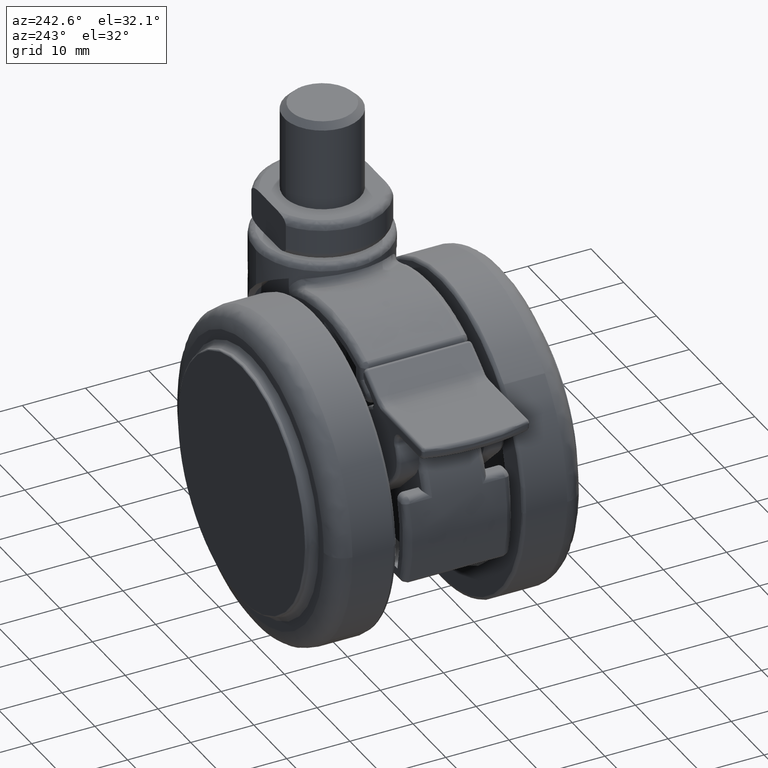
[diagram: clean part render]
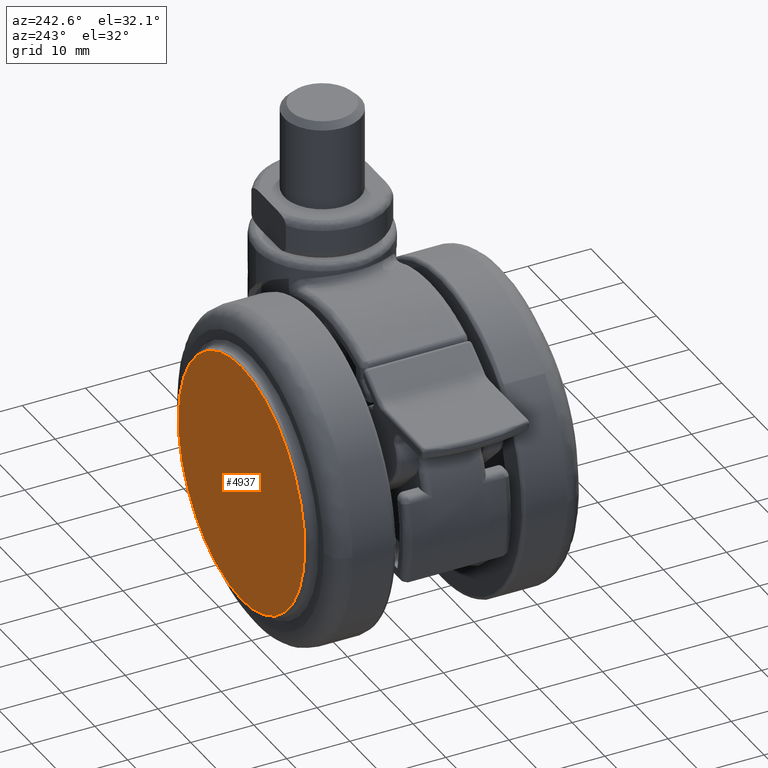
[diagram: same view with one face highlighted and labeled with its STEP entity id]
A machine part, auxiliary view. The second image highlights one B-rep face of the part: STEP entity #4937.
In plain terms, the highlighted face is a freeform B-spline surface patch.
Its self-contained STEP definition (entity closure, byte-faithful):
#4799=CARTESIAN_POINT('',(19.300000002463179,21.600000000000001,-1.770490E-015));
#4800=VERTEX_POINT('',#4799);
#4814=CARTESIAN_POINT('',(2.645150E-015,21.600000000000001,19.300000000000001));
#4815=VERTEX_POINT('',#4814);
#4816=CARTESIAN_POINT('',(19.300000002463179,21.600000000000001,-1.770490E-015));
#4817=CARTESIAN_POINT('',(19.300000001231588,21.599999999999991,19.300000000000008));
#4818=CARTESIAN_POINT('',(2.645150E-015,21.600000000000001,19.300000000000001));
#4826=(BOUNDED_CURVE()B_SPLINE_CURVE(2,(#4816,#4817,#4818),.UNSPECIFIED.,.F.,.U.)B_SPLINE_CURVE_WITH_KNOTS((3,3),(0.750000000000000,1.0),.UNSPECIFIED.)CURVE()GEOMETRIC_REPRESENTATION_ITEM()RATIONAL_B_SPLINE_CURVE((1.0,0.707106781186547,1.0))REPRESENTATION_ITEM(''));
#4827=EDGE_CURVE('',#4800,#4815,#4826,.T.);
#4829=CARTESIAN_POINT('',(-19.300000002463179,21.600000000000009,8.852452E-016));
#4830=VERTEX_POINT('',#4829);
#4831=CARTESIAN_POINT('',(2.645150E-015,21.600000000000001,19.300000000000001));
#4832=CARTESIAN_POINT('',(-19.300000001231588,21.600000000000009,19.300000000000008));
#4833=CARTESIAN_POINT('',(-19.300000002463179,21.600000000000009,8.852452E-016));
#4841=(BOUNDED_CURVE()B_SPLINE_CURVE(2,(#4831,#4832,#4833),.UNSPECIFIED.,.F.,.U.)B_SPLINE_CURVE_WITH_KNOTS((3,3),(0.0,0.250000000000000),.UNSPECIFIED.)CURVE()GEOMETRIC_REPRESENTATION_ITEM()RATIONAL_B_SPLINE_CURVE((1.0,0.707106781186547,1.0))REPRESENTATION_ITEM(''));
#4842=EDGE_CURVE('',#4815,#4830,#4841,.T.);
#4894=CARTESIAN_POINT('',(2.645150E-015,21.600000000000001,-19.300000000000001));
#4895=VERTEX_POINT('',#4894);
#4896=CARTESIAN_POINT('',(-19.300000002463179,21.600000000000009,8.852452E-016));
#4897=CARTESIAN_POINT('',(-19.300000001231588,21.600000000000009,-19.300000000000008));
#4898=CARTESIAN_POINT('',(2.645150E-015,21.600000000000001,-19.300000000000001));
#4906=(BOUNDED_CURVE()B_SPLINE_CURVE(2,(#4896,#4897,#4898),.UNSPECIFIED.,.F.,.U.)B_SPLINE_CURVE_WITH_KNOTS((3,3),(0.250000000000000,0.500000000000000),.UNSPECIFIED.)CURVE()GEOMETRIC_REPRESENTATION_ITEM()RATIONAL_B_SPLINE_CURVE((1.0,0.707106781186547,1.0))REPRESENTATION_ITEM(''));
#4907=EDGE_CURVE('',#4830,#4895,#4906,.T.);
#4909=CARTESIAN_POINT('',(2.645150E-015,21.600000000000001,-19.300000000000001));
#4910=CARTESIAN_POINT('',(19.300000001231588,21.599999999999991,-19.300000000000008));
#4911=CARTESIAN_POINT('',(19.300000002463179,21.600000000000001,-1.770490E-015));
#4919=(BOUNDED_CURVE()B_SPLINE_CURVE(2,(#4909,#4910,#4911),.UNSPECIFIED.,.F.,.U.)B_SPLINE_CURVE_WITH_KNOTS((3,3),(0.500000000000000,0.750000000000000),.UNSPECIFIED.)CURVE()GEOMETRIC_REPRESENTATION_ITEM()RATIONAL_B_SPLINE_CURVE((1.0,0.707106781186547,1.0))REPRESENTATION_ITEM(''));
#4920=EDGE_CURVE('',#4895,#4800,#4919,.T.);
#4926=CARTESIAN_POINT('',(21.228069927894961,21.600000000000001,-21.228069925185711));
#4927=CARTESIAN_POINT('',(21.228069927894961,21.600000000000001,21.228070960518391));
#4928=CARTESIAN_POINT('',(-21.228070963227641,21.600000000000009,-21.228069925185711));
#4929=CARTESIAN_POINT('',(-21.228070963227641,21.600000000000009,21.228070960518391));
#4930=B_SPLINE_SURFACE_WITH_KNOTS('',1,1,((#4926,#4928),(#4927,#4929)),.UNSPECIFIED.,.F.,.F.,.U.,(2,2),(2,2),(0.0,42.456140885704102),(0.0,42.456140891122601),.UNSPECIFIED.);
#4931=ORIENTED_EDGE('',*,*,#4827,.F.);
#4932=ORIENTED_EDGE('',*,*,#4920,.F.);
#4933=ORIENTED_EDGE('',*,*,#4907,.F.);
#4934=ORIENTED_EDGE('',*,*,#4842,.F.);
#4935=EDGE_LOOP('',(#4931,#4932,#4933,#4934));
#4936=FACE_OUTER_BOUND('',#4935,.T.);
#4937=ADVANCED_FACE('',(#4936),#4930,.F.);